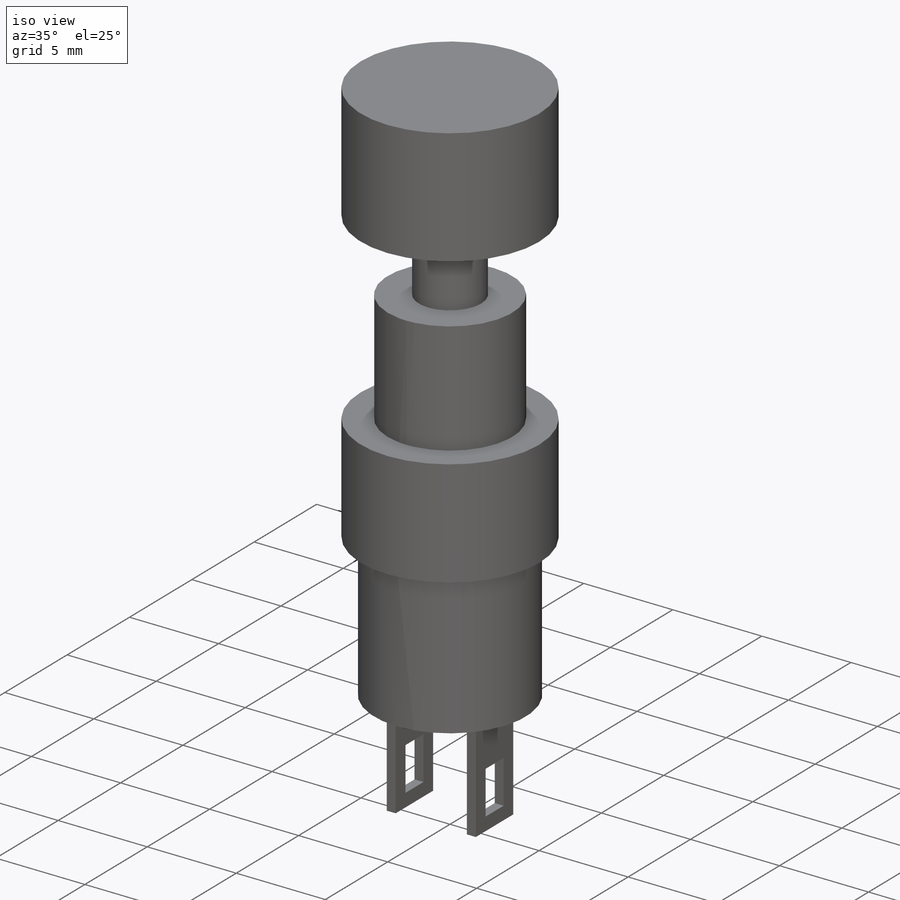
[diagram: iso view]
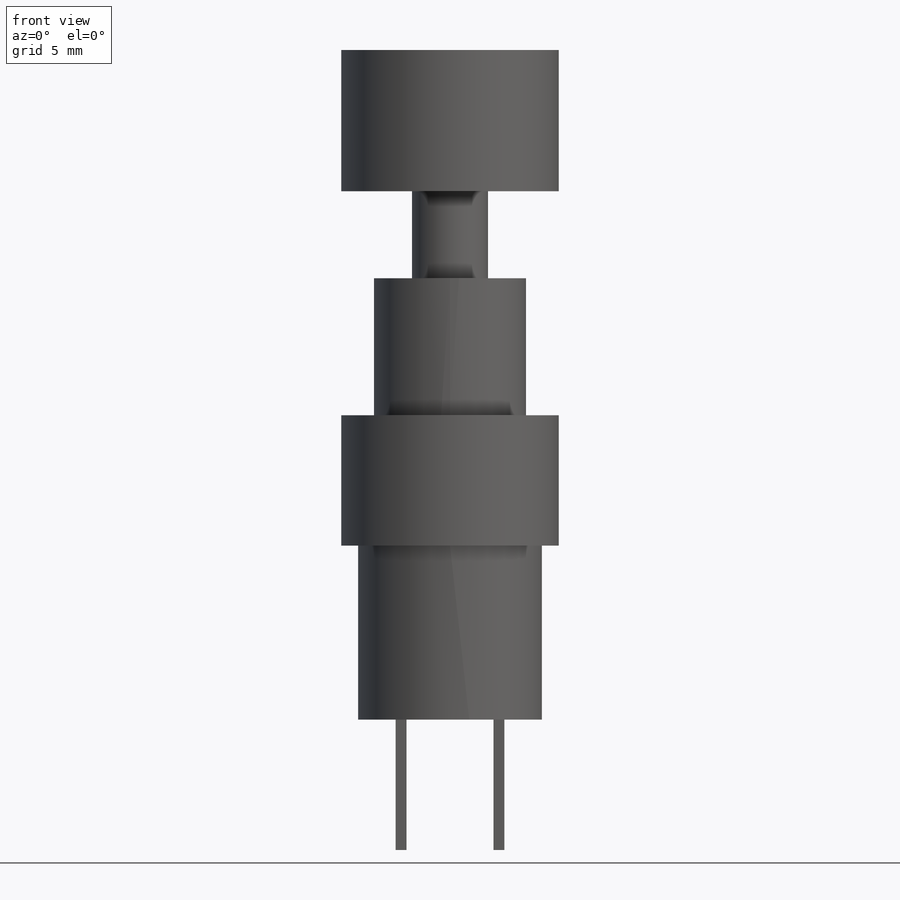
[diagram: front view]
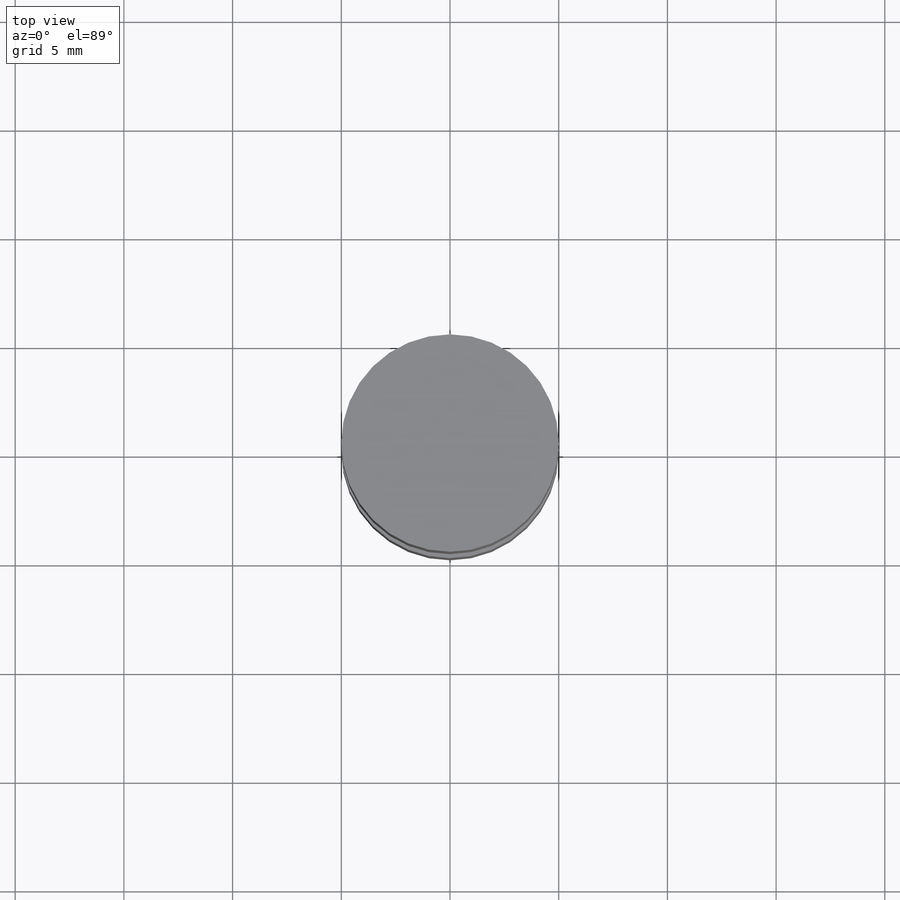
[diagram: top view]
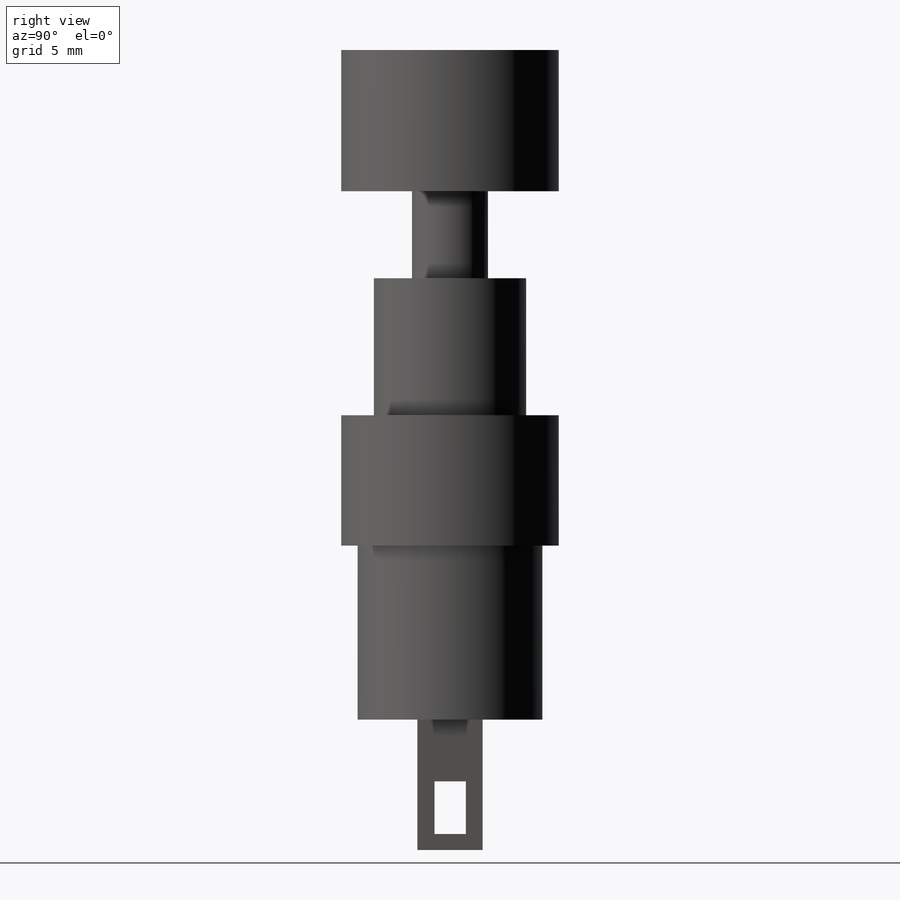
[diagram: right view]
SOLIDWORKS PART (.sldprt)
format: sldprt  version: not decoded by parser v0  size: 178,688 bytes
history: native  units: mm
features: sketch x7, extrude x6, plane x3, material x1, cut_extrude x1 (+13 scaffold rows collapsed)
feature tree (31):
  scaffold x13  (default folders/planes/origin — collapsed)
  material  "Material <não especificado>"
  plane  "Plano frontal"
  plane  "Plano superior"
  plane  "Plano direito"
  sketch  "Esboço1"  dims[D1=10.0mm]
  extrude  "Ressalto-extrusão1"  Depth=6mm
  sketch  "Esboço2"  dims[D1=8.5mm]
  extrude  "Ressalto-extrusão2"  Depth=8mm
  sketch  "Esboço3"  dims[D1=0.5mm D2=3.0mm D3=4.5mm]
  extrude  "Ressalto-extrusão3"  Depth=6mm
  sketch  "Esboço4"
  cut_extrude  "Corte-extrusão1"  [1 undecoded]
  sketch  "Esboço5"  dims[D1=7.0mm]
  extrude  "Ressalto-extrusão4"  Depth=6.3mm
  sketch  "Esboço6"  dims[D1=3.5mm]
  extrude  "Ressalto-extrusão5"  Depth=4mm
  sketch  "Esboço7"  dims[D1=10.0mm]
  extrude  "Ressalto-extrusão6"  Depth=6.5mm
decode coverage: 12 of 14 modeling features carry decoded parameters
note: 1 parameter value undecoded
note: suppression state not decoded; provenance and decode notes live in map.json
